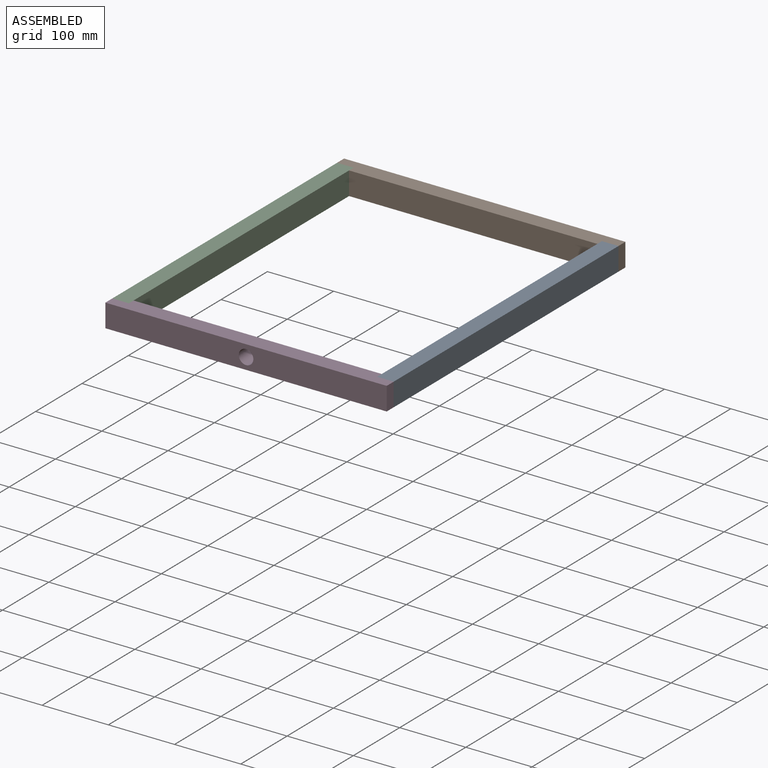
[diagram: assembled view]
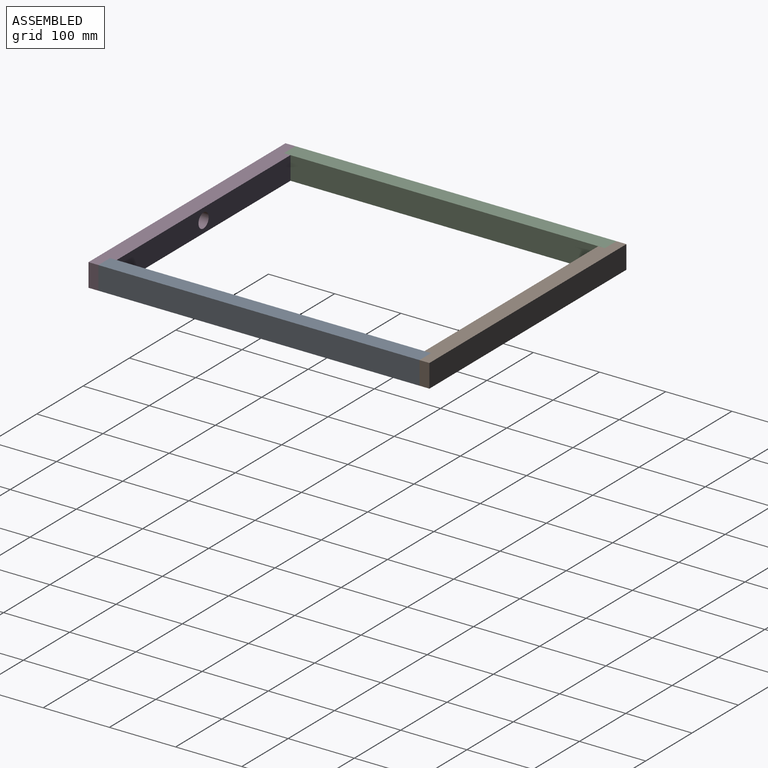
[diagram: assembled view, second angle]
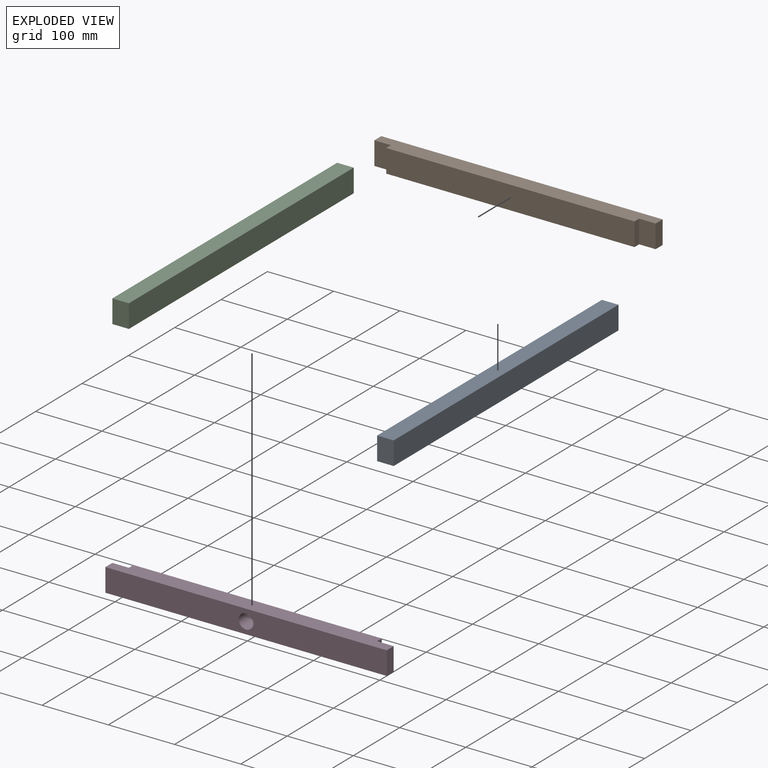
[diagram: exploded view]
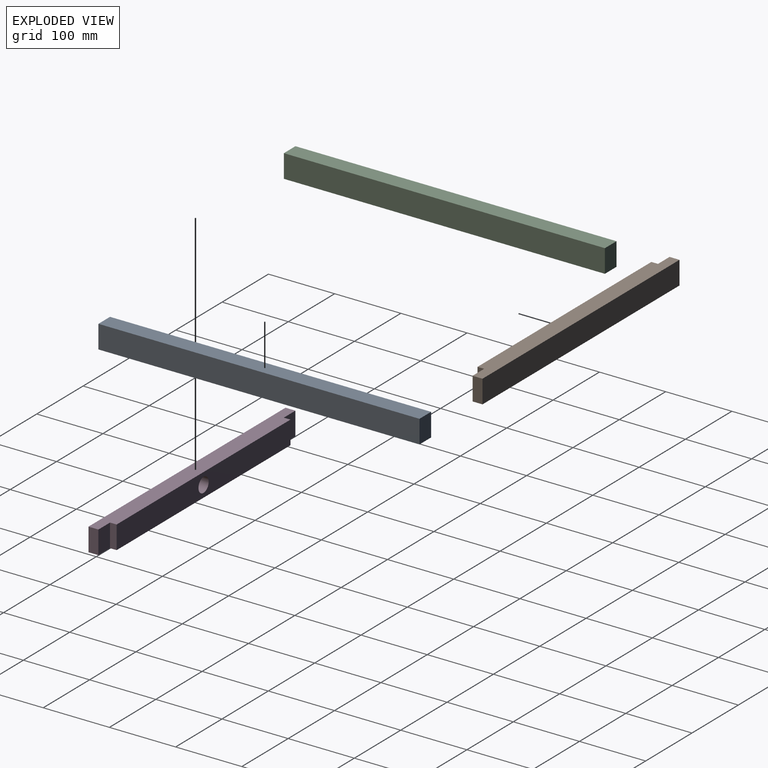
[diagram: exploded view, second angle]
ASSEMBLY  parts=4 mates=3
PART A: 6 faces, bbox 485x25x35 mm
  f0: plane 485x25mm, normal (0,0,1), area 12125mm2, adj f1,f3,f4,f5
  f1: plane 35x25mm, normal (-1,0,0), area 875mm2, adj f0,f2,f4,f5
  f2: plane 485x25mm, normal (0,0,-1), area 12125mm2, adj f1,f3,f4,f5
  f3: plane 35x25mm, normal (1,0,0), area 875mm2, adj f0,f2,f4,f5
  f4: plane 485x35mm, normal (0,-1,0), area 16975mm2, adj f0,f1,f2,f3
  f5: plane 485x35mm, normal (0,1,0), area 16975mm2, adj f0,f1,f2,f3
PART B: 10 faces, bbox 425x25x35 mm
  f0: plane 35x25mm, normal (0,-1,0), area 875mm2, adj f1,f3,f4,f7
  f1: plane 425x25mm, normal (0,0,1), area 10125mm2, adj f0,f2,f4,f5,f6,f7,f8,f9
  f2: plane 35x15mm, normal (-1,0,0), area 525mm2, adj f1,f3,f5,f6
  f3: plane 425x25mm, normal (0,0,-1), area 10125mm2, adj f0,f2,f4,f5,f6,f7,f8,f9
  f4: plane 35x15mm, normal (1,0,0), area 525mm2, adj f0,f1,f3,f6
  f5: plane 35x25mm, normal (0,-1,0), area 875mm2, adj f1,f2,f3,f8
  f6: plane 425x35mm, normal (0,1,0), area 14875mm2, adj f1,f2,f3,f4
  f7: plane 35x10mm, normal (1,0,0), area 350mm2, adj f0,f1,f3,f9
  f8: plane 35x10mm, normal (-1,0,0), area 350mm2, adj f1,f3,f5,f9
  f9: plane 375x35mm, normal (0,-1,0), area 13125mm2, adj f1,f3,f7,f8
PART C: same geometry as A
PART D: 11 faces, bbox 425x25x35 mm
  f0: plane 35x25mm, normal (0,-1,0), area 875mm2, adj f1,f3,f4,f7
  f1: plane 425x25mm, normal (0,0,1), area 10125mm2, adj f0,f2,f4,f5,f6,f7,f8,f9
  f2: plane 35x15mm, normal (-1,0,0), area 525mm2, adj f1,f3,f5,f6
  f3: plane 425x25mm, normal (0,0,-1), area 10125mm2, adj f0,f2,f4,f5,f6,f7,f8,f9
  f4: plane 35x15mm, normal (1,0,0), area 525mm2, adj f0,f1,f3,f6
  f5: plane 35x25mm, normal (0,-1,0), area 875mm2, adj f1,f2,f3,f8
  f6: plane 425x35mm, normal (0,1,0), area 14494.9mm2, adj f1,f2,f3,f4,f10
  f7: plane 35x10mm, normal (1,0,0), area 350mm2, adj f0,f1,f3,f9
  f8: plane 35x10mm, normal (-1,0,0), area 350mm2, adj f1,f3,f5,f9
  f9: plane 375x35mm, normal (0,-1,0), area 12744.9mm2, adj f1,f3,f7,f8,f10
  f10: cylinder r=11mm len=25mm, axis (0,1,0), area 1727.9mm2, adj f6,f9
PLACE A rot(axis=(0,0,-1),90deg) t=(212.5,-245.37,0)mm
PLACE B t=(0,12.13,0)mm
PLACE C rot(axis=(0,0,-1),90deg) t=(-187.5,-245.37,0)mm
PLACE D rot(axis=(1,0,0),180deg) t=(0,-502.87,35)mm
MATE fastened A.f2 <-> B.f3  axis (0,0,-1) through (200,-2.87,0)mm
MATE fastened D.f3 <-> A.f0  axis (0,0,1) through (200,-487.87,35)mm
MATE fastened C.f2 <-> B.f3  axis (0,0,-1) through (-200,-2.87,0)mm
